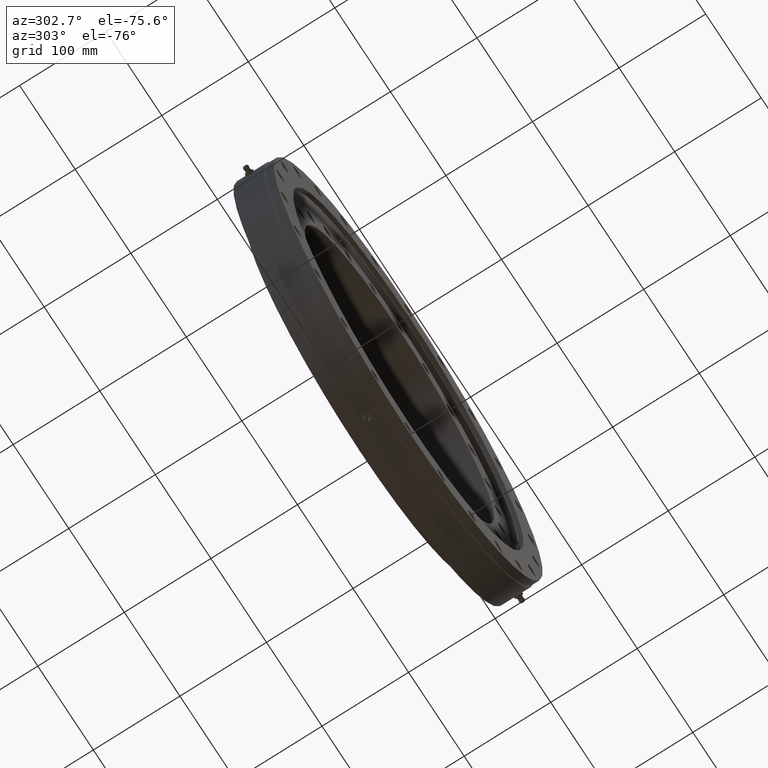
[diagram: clean part render]
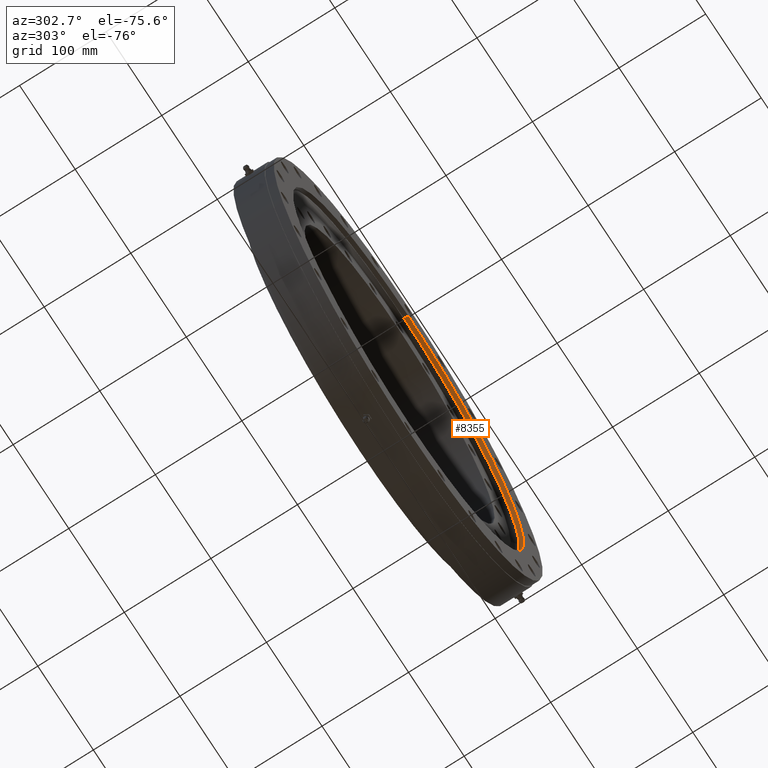
[diagram: same view with one face highlighted and labeled with its STEP entity id]
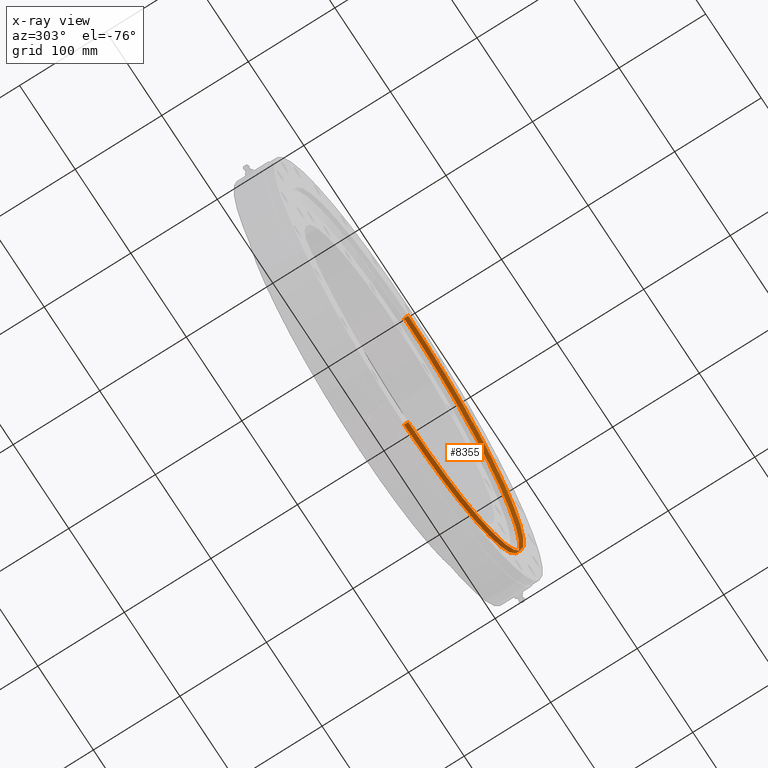
[diagram: x-ray of the same camera — body ghosted, the highlighted face saturated]
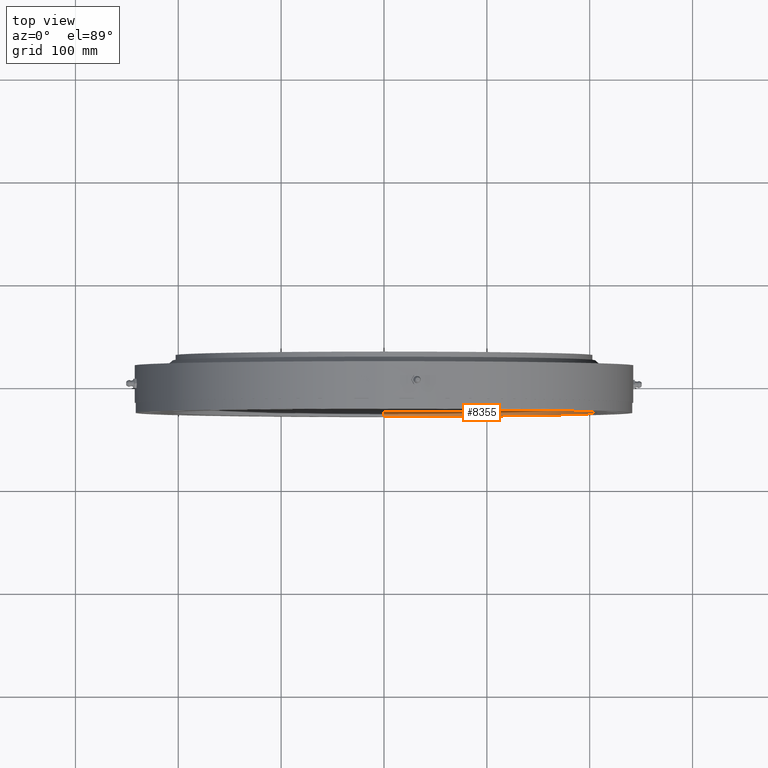
[diagram: same view with one face highlighted and labeled with its STEP entity id]
A machine part, auxiliary view. The second image highlights one B-rep face of the part: STEP entity #8355.
The next image is the same camera in x-ray: the body ghosted, the highlighted face saturated — about 0% of this face is hidden behind the body in this view.
A second angle (top view) of the same face is appended — the face is thin or edge-on in the first view.
In plain terms, the highlighted cylindrical surface (partial cylindrical patch) has radius 207.75 mm, axis along (-0, 1, -0).
Its self-contained STEP definition (entity closure, byte-faithful):
#30 = LINE ( 'NONE', #7833, #250 ) ;
#250 = VECTOR ( 'NONE', #2840, 1000.000000000000000 ) ;
#397 = AXIS2_PLACEMENT_3D ( 'NONE', #3475, #558, #4009 ) ;
#558 = DIRECTION ( 'NONE',  ( -0.0000000000000000000, 1.000000000000000000, -0.0000000000000000000 ) ) ;
#901 = ORIENTED_EDGE ( 'NONE', *, *, #5360, .T. ) ;
#1268 = EDGE_LOOP ( 'NONE', ( #2854, #1388, #901, #2157 ) ) ;
#1388 = ORIENTED_EDGE ( 'NONE', *, *, #1770, .F. ) ;
#1439 = EDGE_CURVE ( 'NONE', #4773, #2530, #30, .T. ) ;
#1522 = CARTESIAN_POINT ( 'NONE',  ( 0.0000000000000000000, -28.00000000000003200, 207.7500000000000000 ) ) ;
#1693 = VERTEX_POINT ( 'NONE', #1522 ) ;
#1770 = EDGE_CURVE ( 'NONE', #1693, #4773, #2883, .T. ) ;
#1999 = CARTESIAN_POINT ( 'NONE',  ( 0.0000000000000000000, 22.16364734299516900, 207.7500000000000000 ) ) ;
#2009 = DIRECTION ( 'NONE',  ( -0.0000000000000000000, 1.000000000000000000, -0.0000000000000000000 ) ) ;
#2078 = DIRECTION ( 'NONE',  ( 0.0000000000000000000, 0.0000000000000000000, 1.000000000000000000 ) ) ;
#2114 = VECTOR ( 'NONE', #2009, 1000.000000000000000 ) ;
#2157 = ORIENTED_EDGE ( 'NONE', *, *, #6077, .T. ) ;
#2530 = VERTEX_POINT ( 'NONE', #3848 ) ;
#2673 = CARTESIAN_POINT ( 'NONE',  ( 0.0000000000000000000, -23.05000000000001500, 207.7500000000000000 ) ) ;
#2840 = DIRECTION ( 'NONE',  ( -0.0000000000000000000, 1.000000000000000000, -0.0000000000000000000 ) ) ;
#2854 = ORIENTED_EDGE ( 'NONE', *, *, #1439, .F. ) ;
#2883 = CIRCLE ( 'NONE', #397, 207.7500000000000000 ) ;
#3247 = LINE ( 'NONE', #1999, #2114 ) ;
#3475 = CARTESIAN_POINT ( 'NONE',  ( 0.0000000000000000000, -28.00000000000003200, 0.0000000000000000000 ) ) ;
#3628 = CARTESIAN_POINT ( 'NONE',  ( 2.544203725228626200E-014, -28.00000000000003200, -207.7500000000000000 ) ) ;
#3848 = CARTESIAN_POINT ( 'NONE',  ( 2.544203725228626200E-014, -23.05000000000001500, -207.7500000000000000 ) ) ;
#4009 = DIRECTION ( 'NONE',  ( 0.0000000000000000000, 0.0000000000000000000, 1.000000000000000000 ) ) ;
#4041 = FACE_OUTER_BOUND ( 'NONE', #1268, .T. ) ;
#4507 = AXIS2_PLACEMENT_3D ( 'NONE', #7850, #5324, #2078 ) ;
#4773 = VERTEX_POINT ( 'NONE', #3628 ) ;
#5324 = DIRECTION ( 'NONE',  ( -0.0000000000000000000, 1.000000000000000000, -0.0000000000000000000 ) ) ;
#5360 = EDGE_CURVE ( 'NONE', #1693, #6572, #3247, .T. ) ;
#6077 = EDGE_CURVE ( 'NONE', #6572, #2530, #7862, .T. ) ;
#6572 = VERTEX_POINT ( 'NONE', #2673 ) ;
#6946 = DIRECTION ( 'NONE',  ( -0.0000000000000000000, 1.000000000000000000, -0.0000000000000000000 ) ) ;
#7029 = CARTESIAN_POINT ( 'NONE',  ( 0.0000000000000000000, 22.16364734299516900, 0.0000000000000000000 ) ) ;
#7042 = DIRECTION ( 'NONE',  ( 0.0000000000000000000, 0.0000000000000000000, 1.000000000000000000 ) ) ;
#7435 = AXIS2_PLACEMENT_3D ( 'NONE', #7029, #6946, #7042 ) ;
#7575 = CYLINDRICAL_SURFACE ( 'NONE', #7435, 207.7500000000000000 ) ;
#7833 = CARTESIAN_POINT ( 'NONE',  ( 2.544203725228626200E-014, 22.16364734299516900, -207.7500000000000000 ) ) ;
#7850 = CARTESIAN_POINT ( 'NONE',  ( 0.0000000000000000000, -23.05000000000001500, 0.0000000000000000000 ) ) ;
#7862 = CIRCLE ( 'NONE', #4507, 207.7500000000000000 ) ;
#8355 = ADVANCED_FACE ( 'NONE', ( #4041 ), #7575, .F. ) ;